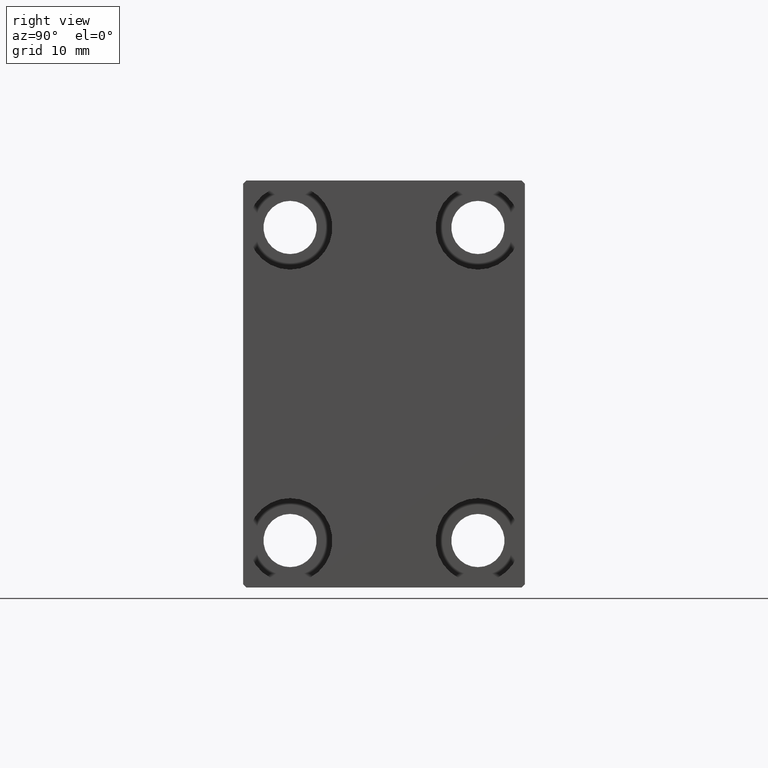
[diagram: clean part render]
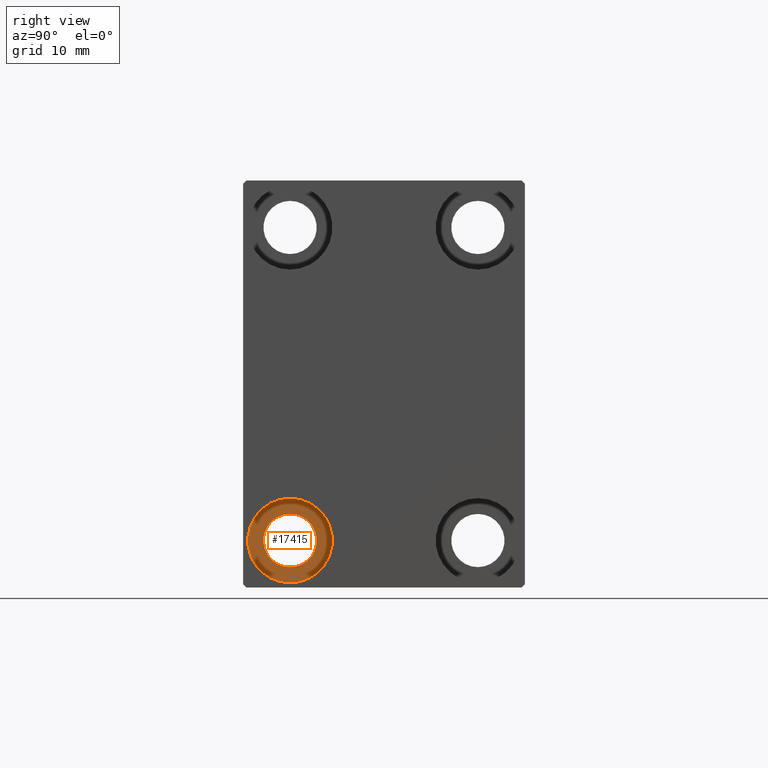
[diagram: same view with one face highlighted and labeled with its STEP entity id]
A machine part, right view. The second image highlights one B-rep face of the part: STEP entity #17415.
In plain terms, the highlighted planar face has unit normal (1, 0, 0).
Its self-contained STEP definition (entity closure, byte-faithful):
#155 = CIRCLE ( 'NONE', #15877, 4.249999999999996447 ) ;
#714 = CARTESIAN_POINT ( 'NONE',  ( 66.00000000000000000, -15.00000000000000355, -31.75000000000000000 ) ) ;
#2415 = PLANE ( 'NONE',  #36092 ) ;
#2904 = CARTESIAN_POINT ( 'NONE',  ( 66.00000000000000000, -15.00000000000000355, -25.00000000000000000 ) ) ;
#3129 = DIRECTION ( 'NONE',  ( 0.000000000000000000, 0.000000000000000000, -1.000000000000000000 ) ) ;
#4645 = ORIENTED_EDGE ( 'NONE', *, *, #27545, .F. ) ;
#4830 = CIRCLE ( 'NONE', #19053, 6.749999999999999112 ) ;
#8399 = CARTESIAN_POINT ( 'NONE',  ( 66.00000000000000000, -15.00000000000000355, -20.75000000000000355 ) ) ;
#9041 = DIRECTION ( 'NONE',  ( -1.000000000000000000, -0.000000000000000000, -0.000000000000000000 ) ) ;
#9498 = AXIS2_PLACEMENT_3D ( 'NONE', #2904, #16898, #3129 ) ;
#12144 = CARTESIAN_POINT ( 'NONE',  ( 66.00000000000000000, -15.00000000000000355, -25.00000000000000000 ) ) ;
#12304 = VERTEX_POINT ( 'NONE', #714 ) ;
#12420 = CARTESIAN_POINT ( 'NONE',  ( 66.00000000000000000, 0.000000000000000000, 0.000000000000000000 ) ) ;
#13583 = ORIENTED_EDGE ( 'NONE', *, *, #17644, .F. ) ;
#14952 = CIRCLE ( 'NONE', #26347, 6.749999999999999112 ) ;
#15472 = VERTEX_POINT ( 'NONE', #34729 ) ;
#15877 = AXIS2_PLACEMENT_3D ( 'NONE', #19241, #32832, #39728 ) ;
#15968 = DIRECTION ( 'NONE',  ( 0.000000000000000000, 0.000000000000000000, 1.000000000000000000 ) ) ;
#16898 = DIRECTION ( 'NONE',  ( -1.000000000000000000, -0.000000000000000000, -0.000000000000000000 ) ) ;
#17415 = ADVANCED_FACE ( 'NONE', ( #29346, #42697 ), #2415, .T. ) ;
#17644 = EDGE_CURVE ( 'NONE', #15472, #12304, #4830, .T. ) ;
#19053 = AXIS2_PLACEMENT_3D ( 'NONE', #12144, #9041, #39086 ) ;
#19241 = CARTESIAN_POINT ( 'NONE',  ( 66.00000000000000000, -15.00000000000000355, -25.00000000000000000 ) ) ;
#19803 = EDGE_LOOP ( 'NONE', ( #4645, #13583 ) ) ;
#25760 = ORIENTED_EDGE ( 'NONE', *, *, #40803, .T. ) ;
#26347 = AXIS2_PLACEMENT_3D ( 'NONE', #30312, #43887, #33023 ) ;
#27545 = EDGE_CURVE ( 'NONE', #12304, #15472, #14952, .T. ) ;
#29346 = FACE_OUTER_BOUND ( 'NONE', #19803, .T. ) ;
#29424 = CIRCLE ( 'NONE', #9498, 4.249999999999996447 ) ;
#30312 = CARTESIAN_POINT ( 'NONE',  ( 66.00000000000000000, -15.00000000000000355, -25.00000000000000000 ) ) ;
#32230 = CARTESIAN_POINT ( 'NONE',  ( 66.00000000000000000, -15.00000000000000355, -29.25000000000000000 ) ) ;
#32700 = VERTEX_POINT ( 'NONE', #32230 ) ;
#32832 = DIRECTION ( 'NONE',  ( -1.000000000000000000, -0.000000000000000000, -0.000000000000000000 ) ) ;
#33023 = DIRECTION ( 'NONE',  ( 0.000000000000000000, 0.000000000000000000, 1.000000000000000000 ) ) ;
#34092 = VERTEX_POINT ( 'NONE', #8399 ) ;
#34729 = CARTESIAN_POINT ( 'NONE',  ( 66.00000000000000000, -15.00000000000000355, -18.25000000000000355 ) ) ;
#35291 = EDGE_CURVE ( 'NONE', #32700, #34092, #155, .T. ) ;
#35369 = DIRECTION ( 'NONE',  ( 1.000000000000000000, 0.000000000000000000, -0.000000000000000000 ) ) ;
#36092 = AXIS2_PLACEMENT_3D ( 'NONE', #12420, #35369, #15968 ) ;
#37305 = ORIENTED_EDGE ( 'NONE', *, *, #35291, .T. ) ;
#39086 = DIRECTION ( 'NONE',  ( 0.000000000000000000, 0.000000000000000000, 1.000000000000000000 ) ) ;
#39375 = EDGE_LOOP ( 'NONE', ( #25760, #37305 ) ) ;
#39728 = DIRECTION ( 'NONE',  ( 0.000000000000000000, 0.000000000000000000, -1.000000000000000000 ) ) ;
#40803 = EDGE_CURVE ( 'NONE', #34092, #32700, #29424, .T. ) ;
#42697 = FACE_BOUND ( 'NONE', #39375, .T. ) ;
#43887 = DIRECTION ( 'NONE',  ( -1.000000000000000000, -0.000000000000000000, -0.000000000000000000 ) ) ;